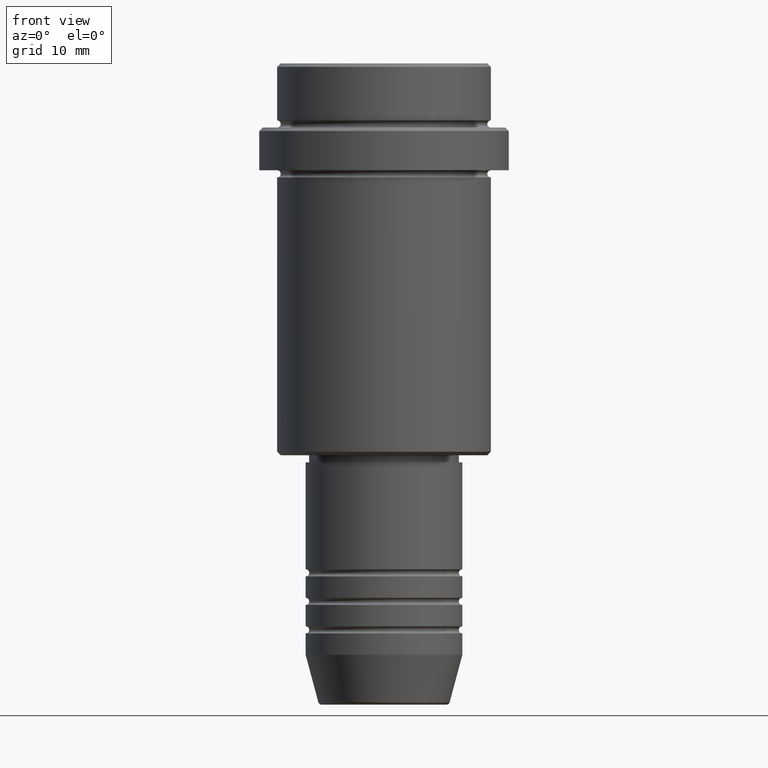
[diagram: clean part render]
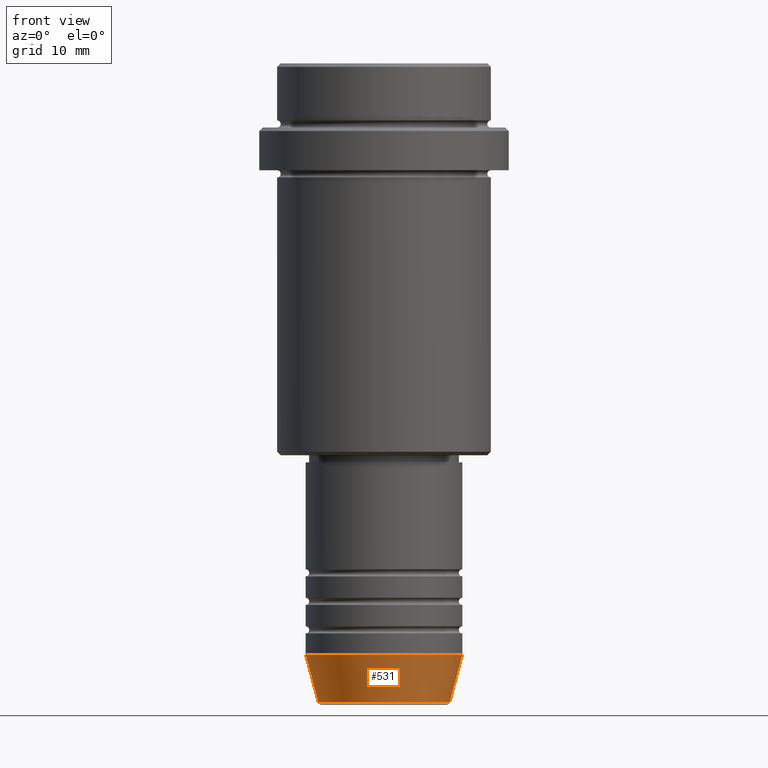
[diagram: same view with one face highlighted and labeled with its STEP entity id]
A machine part, front view. The second image highlights one B-rep face of the part: STEP entity #531.
In plain terms, the highlighted conical surface has half-angle 15 deg.
Its self-contained STEP definition (entity closure, byte-faithful):
#18 = AXIS2_PLACEMENT_3D ( 'NONE', #943, #842, #745 ) ;
#28 = ORIENTED_EDGE ( 'NONE', *, *, #964, .F. ) ;
#49 = CARTESIAN_POINT ( 'NONE',  ( 11.00000000000000000, 0.000000000000000000, -83.00000000000000000 ) ) ;
#149 = VERTEX_POINT ( 'NONE', #1223 ) ;
#154 = CONICAL_SURFACE ( 'NONE', #18, 11.00000000000000000, 0.2617993877991500740 ) ;
#168 = ORIENTED_EDGE ( 'NONE', *, *, #509, .T. ) ;
#175 = VERTEX_POINT ( 'NONE', #759 ) ;
#180 = VECTOR ( 'NONE', #336, 1000.000000000000000 ) ;
#186 = DIRECTION ( 'NONE',  ( -0.000000000000000000, -0.000000000000000000, 1.000000000000000000 ) ) ;
#292 = LINE ( 'NONE', #49, #463 ) ;
#336 = DIRECTION ( 'NONE',  ( -0.2588190451025213501, 3.169619151431772337E-17, 0.9659258262890680902 ) ) ;
#361 = CARTESIAN_POINT ( 'NONE',  ( 9.223655072137194821, 0.000000000000000000, -89.62940952255124216 ) ) ;
#387 = ORIENTED_EDGE ( 'NONE', *, *, #921, .T. ) ;
#424 = EDGE_LOOP ( 'NONE', ( #1107, #387, #168, #28 ) ) ;
#463 = VECTOR ( 'NONE', #529, 1000.000000000000000 ) ;
#505 = FACE_OUTER_BOUND ( 'NONE', #424, .T. ) ;
#509 = EDGE_CURVE ( 'NONE', #864, #175, #292, .T. ) ;
#529 = DIRECTION ( 'NONE',  ( 0.2588190451025213501, 0.000000000000000000, 0.9659258262890680902 ) ) ;
#531 = ADVANCED_FACE ( 'NONE', ( #505 ), #154, .T. ) ;
#533 = CIRCLE ( 'NONE', #1060, 11.00000000000000000 ) ;
#693 = CIRCLE ( 'NONE', #880, 9.223655072137194821 ) ;
#723 = LINE ( 'NONE', #1153, #180 ) ;
#745 = DIRECTION ( 'NONE',  ( 1.000000000000000000, 0.000000000000000000, 0.000000000000000000 ) ) ;
#759 = CARTESIAN_POINT ( 'NONE',  ( 11.00000000000000000, 0.000000000000000000, -83.00000000000000000 ) ) ;
#774 = VERTEX_POINT ( 'NONE', #1116 ) ;
#840 = DIRECTION ( 'NONE',  ( -0.000000000000000000, -0.000000000000000000, 1.000000000000000000 ) ) ;
#842 = DIRECTION ( 'NONE',  ( -0.000000000000000000, -0.000000000000000000, 1.000000000000000000 ) ) ;
#864 = VERTEX_POINT ( 'NONE', #361 ) ;
#880 = AXIS2_PLACEMENT_3D ( 'NONE', #958, #840, #942 ) ;
#921 = EDGE_CURVE ( 'NONE', #774, #864, #693, .T. ) ;
#942 = DIRECTION ( 'NONE',  ( 1.000000000000000000, 0.000000000000000000, 0.000000000000000000 ) ) ;
#943 = CARTESIAN_POINT ( 'NONE',  ( 0.000000000000000000, 0.000000000000000000, -83.00000000000000000 ) ) ;
#949 = DIRECTION ( 'NONE',  ( 1.000000000000000000, 0.000000000000000000, 0.000000000000000000 ) ) ;
#958 = CARTESIAN_POINT ( 'NONE',  ( 0.000000000000000000, 0.000000000000000000, -89.62940952255124216 ) ) ;
#964 = EDGE_CURVE ( 'NONE', #149, #175, #533, .T. ) ;
#1020 = EDGE_CURVE ( 'NONE', #774, #149, #723, .T. ) ;
#1060 = AXIS2_PLACEMENT_3D ( 'NONE', #1167, #186, #949 ) ;
#1107 = ORIENTED_EDGE ( 'NONE', *, *, #1020, .F. ) ;
#1116 = CARTESIAN_POINT ( 'NONE',  ( -9.223655072137194821, 1.238341722557647399E-15, -89.62940952255124216 ) ) ;
#1153 = CARTESIAN_POINT ( 'NONE',  ( -11.00000000000000000, 1.347111479062088405E-15, -83.00000000000000000 ) ) ;
#1167 = CARTESIAN_POINT ( 'NONE',  ( 0.000000000000000000, 0.000000000000000000, -83.00000000000000000 ) ) ;
#1223 = CARTESIAN_POINT ( 'NONE',  ( -11.00000000000000000, 1.347111479062088405E-15, -83.00000000000000000 ) ) ;